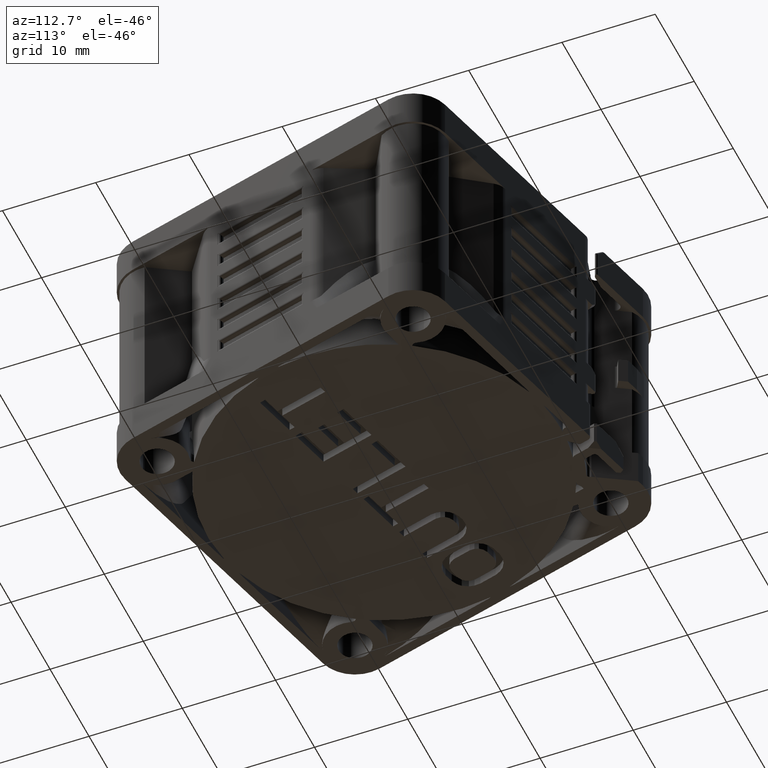
[diagram: clean part render]
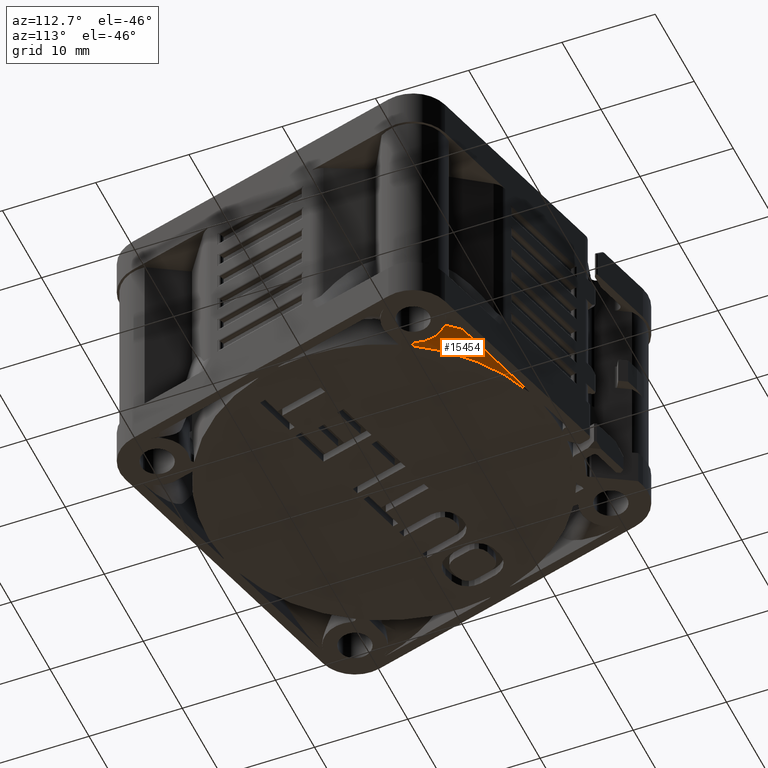
[diagram: same view with one face highlighted and labeled with its STEP entity id]
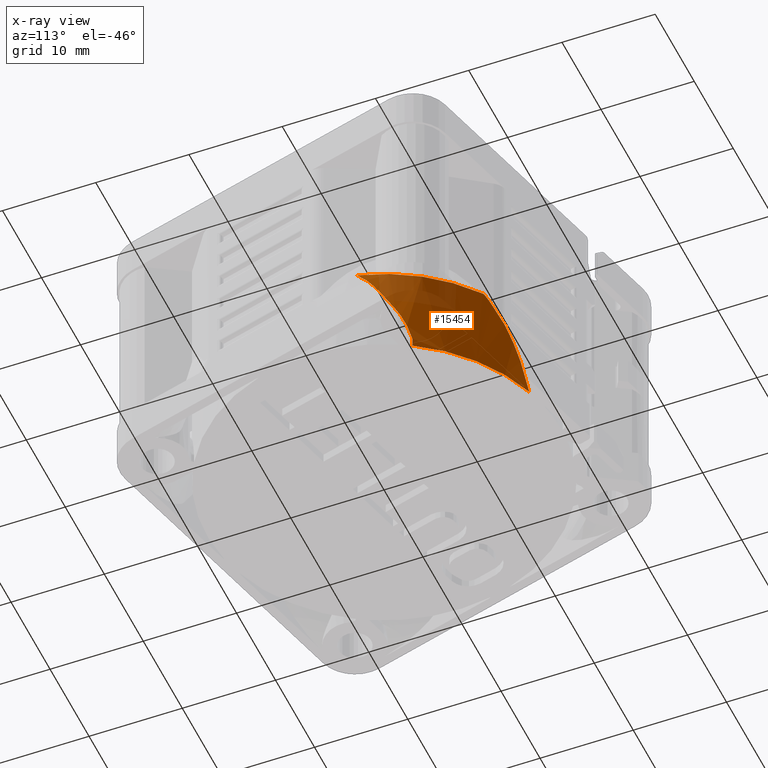
[diagram: x-ray of the same camera — body ghosted, the highlighted face saturated]
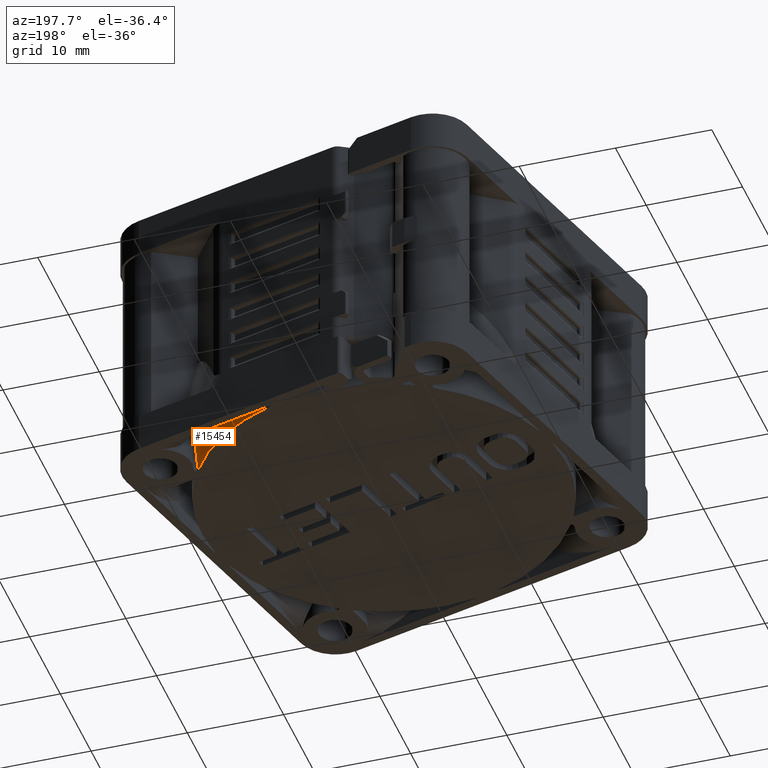
[diagram: same view with one face highlighted and labeled with its STEP entity id]
A machine part, auxiliary view. The second image highlights one B-rep face of the part: STEP entity #15454.
The next image is the same camera in x-ray: the body ghosted, the highlighted face saturated — about 24% of this face is hidden behind the body in this view.
A second angle (auxiliary view) of the same face is appended — the face is thin or edge-on in the first view.
In plain terms, the highlighted cylindrical surface (partial cylindrical patch) has radius 19 mm, axis along (0, 0, -1).
Its self-contained STEP definition (entity closure, byte-faithful):
#732=CARTESIAN_POINT('',(0.E0,0.E0,0.E0));
#733=DIRECTION('',(0.E0,0.E0,-1.E0));
#734=DIRECTION('',(3.110215914029E-1,9.504028459980E-1,0.E0));
#735=AXIS2_PLACEMENT_3D('',#732,#733,#734);
#2651=CARTESIAN_POINT('',(9.003982224430E0,1.673105806882E1,7.083554496714E0));
#2652=CARTESIAN_POINT('',(9.103653478343E0,1.667741901056E1,7.219823846575E0));
#2653=CARTESIAN_POINT('',(9.291389928716E0,1.657410134944E1,7.480006089361E0));
#2654=CARTESIAN_POINT('',(9.543258885663E0,1.643022139690E1,7.824381038029E0));
#2655=CARTESIAN_POINT('',(9.772981656981E0,1.629446090210E1,8.130408820347E0));
#2656=CARTESIAN_POINT('',(9.970766086367E0,1.617405215866E1,8.415008601233E0));
#2657=CARTESIAN_POINT('',(1.015297953447E1,1.606024732820E1,8.669653578301E0));
#2658=CARTESIAN_POINT('',(1.032298333362E1,1.595144471193E1,8.896581966838E0));
#2659=CARTESIAN_POINT('',(1.047813897551E1,1.584988498976E1,9.102462691448E0));
#2660=CARTESIAN_POINT('',(1.061559422608E1,1.575808441594E1,9.295378511719E0));
#2661=CARTESIAN_POINT('',(1.073751255801E1,1.567521330089E1,9.475648183965E0));
#2662=CARTESIAN_POINT('',(1.084745084283E1,1.559930579253E1,9.640673853734E0));
#2663=CARTESIAN_POINT('',(1.095075447911E1,1.552694788550E1,9.785586595060E0));
#2664=CARTESIAN_POINT('',(1.105326908452E1,1.545415444623E1,9.903569298279E0));
#2665=CARTESIAN_POINT('',(1.116181671946E1,1.537594942131E1,9.983045295217E0));
#2666=CARTESIAN_POINT('',(1.123273884778E1,1.532408326657E1,1.000000002594E1));
#2667=CARTESIAN_POINT('',(1.126829322380E1,1.529789422869E1,1.000000000648E1));
#2683=CARTESIAN_POINT('',(0.E0,0.E0,1.E1));
#2684=DIRECTION('',(0.E0,0.E0,-1.E0));
#2685=DIRECTION('',(5.930680615911E-1,8.051523298858E-1,0.E0));
#2686=AXIS2_PLACEMENT_3D('',#2683,#2684,#2685);
#2701=CARTESIAN_POINT('',(1.839540848809E1,4.754886597622E0,1.E1));
#2702=CARTESIAN_POINT('',(1.837880163407E1,4.819134157938E0,9.953266861391E0));
#2703=CARTESIAN_POINT('',(1.834602444633E1,4.943180904436E0,9.855761387423E0));
#2704=CARTESIAN_POINT('',(1.829724004587E1,5.120763744187E0,9.708740988872E0));
#2705=CARTESIAN_POINT('',(1.824696394450E1,5.297106502625E0,9.558205864657E0));
#2706=CARTESIAN_POINT('',(1.819638296302E1,5.468251971231E0,9.399907374458E0));
#2707=CARTESIAN_POINT('',(1.814641338626E1,5.631803081612E0,9.236957589183E0));
#2708=CARTESIAN_POINT('',(1.809555840144E1,5.793133286874E0,9.066579013234E0));
#2709=CARTESIAN_POINT('',(1.804230798053E1,5.956960299551E0,8.881475970591E0));
#2710=CARTESIAN_POINT('',(1.798517926255E1,6.127369317259E0,8.673194396374E0));
#2711=CARTESIAN_POINT('',(1.792333478055E1,6.306072711282E0,8.434685048459E0));
#2712=CARTESIAN_POINT('',(1.785596294689E1,6.494546050931E0,8.165362132411E0));
#2713=CARTESIAN_POINT('',(1.778126323394E1,6.696446555012E0,7.868906117338E0));
#2714=CARTESIAN_POINT('',(1.770252471663E1,6.902029098245E0,7.539710587712E0));
#2715=CARTESIAN_POINT('',(1.761375223321E1,7.125784496563E0,7.185672089644E0));
#2716=CARTESIAN_POINT('',(1.751640561963E1,7.361859458773E0,6.797141010576E0));
#2717=CARTESIAN_POINT('',(1.741677141519E1,7.594640071563E0,6.360912605069E0));
#2718=CARTESIAN_POINT('',(1.733943460233E1,7.768927147908E0,6.048767590584E0));
#2719=CARTESIAN_POINT('',(1.730071634412E1,7.854205718615E0,5.882143322928E0));
#2727=CARTESIAN_POINT('',(1.730071634412E1,7.854205718615E0,5.882143322928E0));
#2728=CARTESIAN_POINT('',(1.728302455594E1,7.893172613656E0,5.805984558525E0));
#2729=CARTESIAN_POINT('',(1.724421815711E1,7.977617245916E0,5.655024583374E0));
#2730=CARTESIAN_POINT('',(1.718212229943E1,8.110639546118E0,5.432794180412E0));
#2731=CARTESIAN_POINT('',(1.711760702355E1,8.245901886090E0,5.211320980787E0));
#2732=CARTESIAN_POINT('',(1.705285265045E1,8.378979866704E0,4.994009543521E0));
#2733=CARTESIAN_POINT('',(1.698911902279E1,8.507442744122E0,4.775509087395E0));
#2734=CARTESIAN_POINT('',(1.692430668054E1,8.635680485104E0,4.539382423335E0));
#2735=CARTESIAN_POINT('',(1.685590773803E1,8.768468620476E0,4.275957022097E0));
#2736=CARTESIAN_POINT('',(1.678453122127E1,8.904357104921E0,3.985756226158E0));
#2737=CARTESIAN_POINT('',(1.671021739028E1,9.043065416956E0,3.667139583322E0));
#2738=CARTESIAN_POINT('',(1.663408825909E1,9.182342304154E0,3.319014093600E0));
#2739=CARTESIAN_POINT('',(1.655842294619E1,9.318066343071E0,2.937695347285E0));
#2740=CARTESIAN_POINT('',(1.648445254398E1,9.448289205755E0,2.519665314501E0));
#2741=CARTESIAN_POINT('',(1.640972178699E1,9.577506609061E0,2.058992675459E0));
#2742=CARTESIAN_POINT('',(1.633319873115E1,9.707413638528E0,1.558699165343E0));
#2743=CARTESIAN_POINT('',(1.628441193932E1,9.788772379484E0,1.190176670352E0));
#2744=CARTESIAN_POINT('',(1.626049976369E1,9.828333909430E0,9.977983584358E-1));
#2777=DIRECTION('',(0.E0,0.E0,-1.E0));
#2778=VECTOR('',#2777,9.977983584358E-1);
#2779=CARTESIAN_POINT('',(1.626049976369E1,9.828333909430E0,9.977983584358E-1));
#2780=LINE('',#2779,#2778);
#2892=CARTESIAN_POINT('',(5.909410236657E0,1.805765407397E1,0.E0));
#2893=CARTESIAN_POINT('',(5.931337559525E0,1.805047830541E1,7.607346430534E-2));
#2894=CARTESIAN_POINT('',(5.975752908849E0,1.803585347110E1,2.279726153700E-1));
#2895=CARTESIAN_POINT('',(6.042234627472E0,1.801369136887E1,4.548181509779E-1));
#2896=CARTESIAN_POINT('',(6.111766714081E0,1.799022692200E1,6.821635396759E-1));
#2897=CARTESIAN_POINT('',(6.187695193513E0,1.796426287311E1,9.115227720344E-1));
#2898=CARTESIAN_POINT('',(6.269203268005E0,1.793599062946E1,1.149682512580E0));
#2899=CARTESIAN_POINT('',(6.356629742443E0,1.790520302293E1,1.403789213840E0));
#2900=CARTESIAN_POINT('',(6.450427718313E0,1.787164436585E1,1.682045705992E0));
#2901=CARTESIAN_POINT('',(6.558536248905E0,1.783230004530E1,1.990171098394E0));
#2902=CARTESIAN_POINT('',(6.688956938387E0,1.778385138055E1,2.330050047170E0));
#2903=CARTESIAN_POINT('',(6.837560508919E0,1.772729411870E1,2.706798019079E0));
#2904=CARTESIAN_POINT('',(7.007803826874E0,1.766083225825E1,3.136375787041E0));
#2905=CARTESIAN_POINT('',(7.215802073453E0,1.757695022228E1,3.606263968099E0));
#2906=CARTESIAN_POINT('',(7.417378649681E0,1.749280636736E1,4.073847149736E0));
#2907=CARTESIAN_POINT('',(7.617025657442E0,1.740677429723E1,4.498458676517E0));
#2908=CARTESIAN_POINT('',(7.802623480170E0,1.732432598024E1,4.889219922094E0));
#2909=CARTESIAN_POINT('',(7.981515700969E0,1.724261108090E1,5.247990116048E0));
#2910=CARTESIAN_POINT('',(8.148016592939E0,1.716450343048E1,5.568598118212E0));
#2911=CARTESIAN_POINT('',(8.300876555788E0,1.709106075372E1,5.853904556598E0));
#2912=CARTESIAN_POINT('',(8.443266262741E0,1.702113888173E1,6.114382968872E0));
#2913=CARTESIAN_POINT('',(8.579285027995E0,1.695298221898E1,6.360619300442E0));
#2914=CARTESIAN_POINT('',(8.716958340345E0,1.688261894799E1,6.604077247603E0));
#2915=CARTESIAN_POINT('',(8.858278633574E0,1.680891802138E1,6.845200978979E0));
#2916=CARTESIAN_POINT('',(8.955546127494E0,1.675712442721E1,7.003941853387E0));
#2917=CARTESIAN_POINT('',(9.003982224430E0,1.673105806882E1,7.083554496714E0));
#13367=VERTEX_POINT('',#2651);
#13368=VERTEX_POINT('',#2667);
#13369=CARTESIAN_POINT('',(1.839540848809E1,4.754886597622E0,1.E1));
#13370=VERTEX_POINT('',#13369);
#13371=VERTEX_POINT('',#2892);
#13372=VERTEX_POINT('',#2727);
#13373=VERTEX_POINT('',#2744);
#13374=CARTESIAN_POINT('',(1.626049976369E1,9.828333909430E0,0.E0));
#13375=VERTEX_POINT('',#13374);
#15434=CARTESIAN_POINT('',(0.E0,0.E0,0.E0));
#15435=DIRECTION('',(0.E0,0.E0,-1.E0));
#15436=DIRECTION('',(9.659258262891E-1,-2.588190451025E-1,0.E0));
#15437=AXIS2_PLACEMENT_3D('',#15434,#15435,#15436);
#15438=CYLINDRICAL_SURFACE('',#15437,1.9E1);
#15440=ORIENTED_EDGE('',*,*,#15439,.F.);
#15442=ORIENTED_EDGE('',*,*,#15441,.F.);
#15443=ORIENTED_EDGE('',*,*,#15022,.T.);
#15445=ORIENTED_EDGE('',*,*,#15444,.F.);
#15447=ORIENTED_EDGE('',*,*,#15446,.F.);
#15449=ORIENTED_EDGE('',*,*,#15448,.F.);
#15451=ORIENTED_EDGE('',*,*,#15450,.F.);
#15452=EDGE_LOOP('',(#15440,#15442,#15443,#15445,#15447,#15449,#15451));
#15453=FACE_OUTER_BOUND('',#15452,.F.);
#15454=ADVANCED_FACE('',(#15453),#15438,.T.);
#736=CIRCLE('',#735,1.9E1);
#2668=B_SPLINE_CURVE_WITH_KNOTS('',3,(#2651,#2652,#2653,#2654,#2655,#2656,#2657,
#2658,#2659,#2660,#2661,#2662,#2663,#2664,#2665,#2666,#2667),.UNSPECIFIED.,.F.,
.F.,(4,1,1,1,1,1,1,1,1,1,1,1,1,1,4),(0.E0,7.142857142857E-2,1.428571428571E-1,
2.142857142857E-1,2.857142857143E-1,3.571428571429E-1,4.285714285714E-1,5.E-1,
5.714285714286E-1,6.428571428571E-1,7.142857142857E-1,7.857142857143E-1,
8.571428571429E-1,9.285714285714E-1,1.E0),.UNSPECIFIED.);
#2687=CIRCLE('',#2686,1.9E1);
#2720=B_SPLINE_CURVE_WITH_KNOTS('',3,(#2701,#2702,#2703,#2704,#2705,#2706,#2707,
#2708,#2709,#2710,#2711,#2712,#2713,#2714,#2715,#2716,#2717,#2718,#2719),
.UNSPECIFIED.,.F.,.F.,(4,1,1,1,1,1,1,1,1,1,1,1,1,1,1,1,4),(0.E0,6.25E-2,1.25E-1,
1.875E-1,2.5E-1,3.125E-1,3.75E-1,4.375E-1,5.E-1,5.625E-1,6.25E-1,6.875E-1,
7.5E-1,8.125E-1,8.75E-1,9.375E-1,1.E0),.UNSPECIFIED.);
#2745=B_SPLINE_CURVE_WITH_KNOTS('',3,(#2727,#2728,#2729,#2730,#2731,#2732,#2733,
#2734,#2735,#2736,#2737,#2738,#2739,#2740,#2741,#2742,#2743,#2744),
.UNSPECIFIED.,.F.,.F.,(4,1,1,1,1,1,1,1,1,1,1,1,1,1,1,4),(0.E0,6.666666666667E-2,
1.333333333333E-1,2.E-1,2.666666666667E-1,3.333333333333E-1,4.E-1,
4.666666666667E-1,5.333333333333E-1,6.E-1,6.666666666667E-1,7.333333333333E-1,
8.E-1,8.666666666667E-1,9.333333333333E-1,1.E0),.UNSPECIFIED.);
#2918=B_SPLINE_CURVE_WITH_KNOTS('',3,(#2892,#2893,#2894,#2895,#2896,#2897,#2898,
#2899,#2900,#2901,#2902,#2903,#2904,#2905,#2906,#2907,#2908,#2909,#2910,#2911,
#2912,#2913,#2914,#2915,#2916,#2917),.UNSPECIFIED.,.F.,.F.,(4,1,1,1,1,1,1,1,1,1,
1,1,1,1,1,1,1,1,1,1,1,1,1,4),(0.E0,4.347826086957E-2,8.695652173913E-2,
1.304347826087E-1,1.739130434783E-1,2.173913043478E-1,2.608695652174E-1,
3.043478260870E-1,3.478260869565E-1,3.913043478261E-1,4.347826086957E-1,
4.782608695652E-1,5.217391304348E-1,5.652173913043E-1,6.086956521739E-1,
6.521739130435E-1,6.956521739130E-1,7.391304347826E-1,7.826086956522E-1,
8.260869565217E-1,8.695652173913E-1,9.130434782609E-1,9.565217391304E-1,1.E0),
.UNSPECIFIED.);
#15022=EDGE_CURVE('',#13371,#13375,#736,.T.);
#15439=EDGE_CURVE('',#13367,#13368,#2668,.T.);
#15441=EDGE_CURVE('',#13371,#13367,#2918,.T.);
#15444=EDGE_CURVE('',#13373,#13375,#2780,.T.);
#15446=EDGE_CURVE('',#13372,#13373,#2745,.T.);
#15448=EDGE_CURVE('',#13370,#13372,#2720,.T.);
#15450=EDGE_CURVE('',#13368,#13370,#2687,.T.);